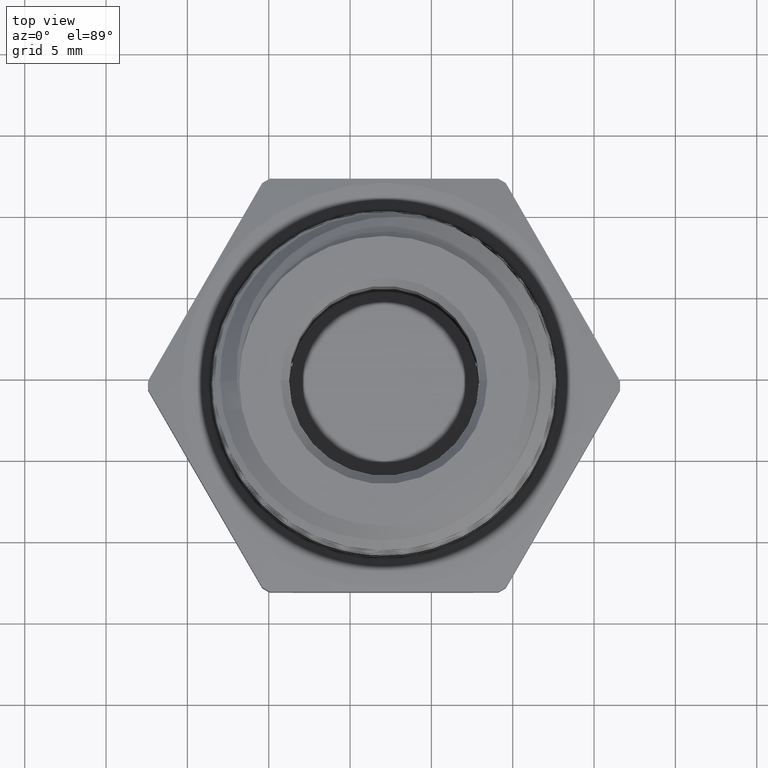
[diagram: clean part render]
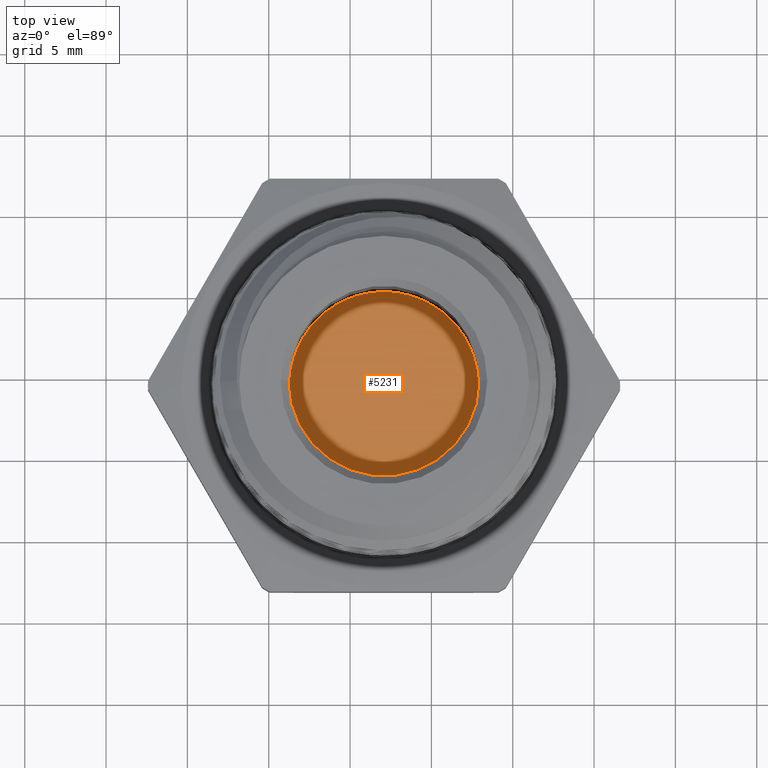
[diagram: same view with one face highlighted and labeled with its STEP entity id]
A machine part, top view. The second image highlights one B-rep face of the part: STEP entity #5231.
In plain terms, the highlighted planar face has unit normal (0, 0, -1).
Its self-contained STEP definition (entity closure, byte-faithful):
#233 = VERTEX_POINT ( 'NONE', #4887 ) ;
#234 = VERTEX_POINT ( 'NONE', #4888 ) ;
#289 = ORIENTED_EDGE ( 'NONE', *, *, #2915, .F. ) ;
#298 = EDGE_LOOP ( 'NONE', ( #308, #289 ) ) ;
#308 = ORIENTED_EDGE ( 'NONE', *, *, #2917, .F. ) ;
#2539 = AXIS2_PLACEMENT_3D ( 'NONE', #5035, #5040, #5041 ) ;
#2633 = CIRCLE ( 'NONE', #3054, 0.2300000000000000100 ) ;
#2636 = CIRCLE ( 'NONE', #3052, 0.2300000000000000100 ) ;
#2915 = EDGE_CURVE ( 'NONE', #233, #234, #2636, .T. ) ;
#2917 = EDGE_CURVE ( 'NONE', #234, #233, #2633, .T. ) ;
#3052 = AXIS2_PLACEMENT_3D ( 'NONE', #4900, #4901, #4902 ) ;
#3054 = AXIS2_PLACEMENT_3D ( 'NONE', #4909, #4910, #4911 ) ;
#4887 = CARTESIAN_POINT ( 'NONE',  ( 2.816687638038911700E-017, 0.0000000000000000000, 0.2300000000000000100 ) ) ;
#4888 = CARTESIAN_POINT ( 'NONE',  ( 0.0000000000000000000, 0.0000000000000000000, -0.2300000000000000100 ) ) ;
#4900 = CARTESIAN_POINT ( 'NONE',  ( 0.0000000000000000000, 0.0000000000000000000, 0.0000000000000000000 ) ) ;
#4901 = DIRECTION ( 'NONE',  ( 0.0000000000000000000, 1.000000000000000000, 0.0000000000000000000 ) ) ;
#4902 = DIRECTION ( 'NONE',  ( 0.0000000000000000000, 0.0000000000000000000, 1.000000000000000000 ) ) ;
#4909 = CARTESIAN_POINT ( 'NONE',  ( 0.0000000000000000000, 0.0000000000000000000, 0.0000000000000000000 ) ) ;
#4910 = DIRECTION ( 'NONE',  ( 0.0000000000000000000, 1.000000000000000000, 0.0000000000000000000 ) ) ;
#4911 = DIRECTION ( 'NONE',  ( 0.0000000000000000000, 0.0000000000000000000, 1.000000000000000000 ) ) ;
#5035 = CARTESIAN_POINT ( 'NONE',  ( 0.0000000000000000000, 0.0000000000000000000, 0.0000000000000000000 ) ) ;
#5038 = PLANE ( 'NONE',  #2539 ) ;
#5040 = DIRECTION ( 'NONE',  ( 0.0000000000000000000, 1.000000000000000000, 0.0000000000000000000 ) ) ;
#5041 = DIRECTION ( 'NONE',  ( 0.0000000000000000000, -0.0000000000000000000, 1.000000000000000000 ) ) ;
#5135 = FACE_OUTER_BOUND ( 'NONE', #298, .T. ) ;
#5231 = ADVANCED_FACE ( 'NONE', ( #5135 ), #5038, .F. ) ;